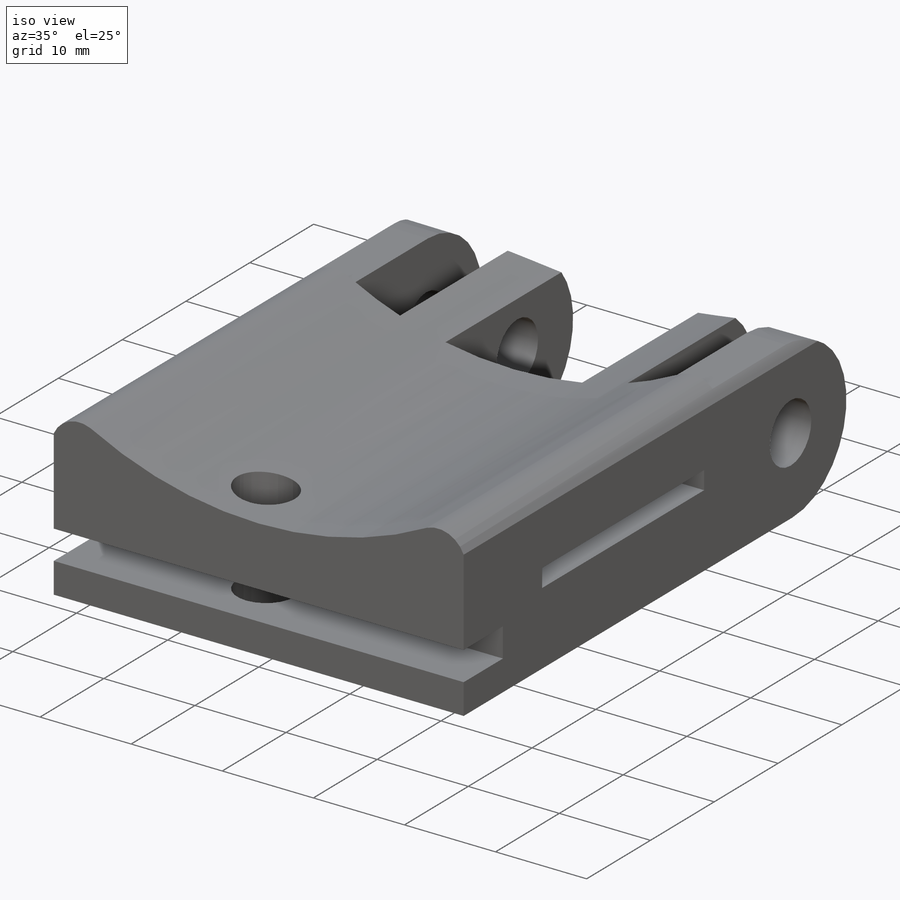
[diagram: iso view]
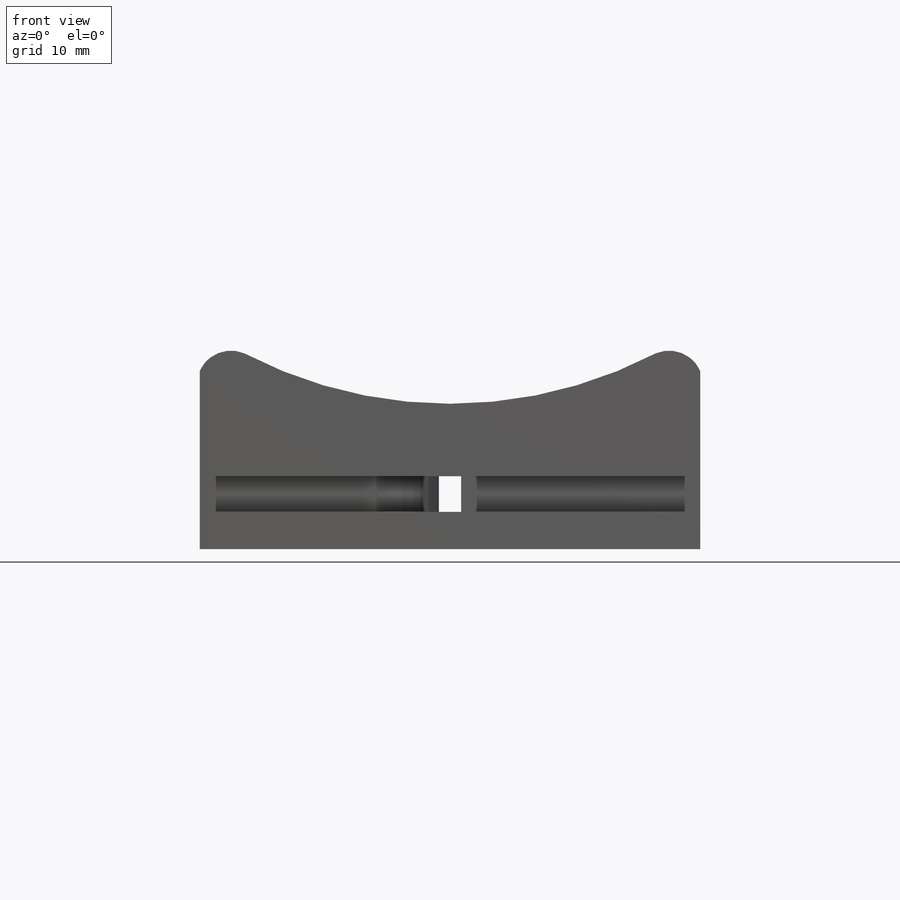
[diagram: front view]
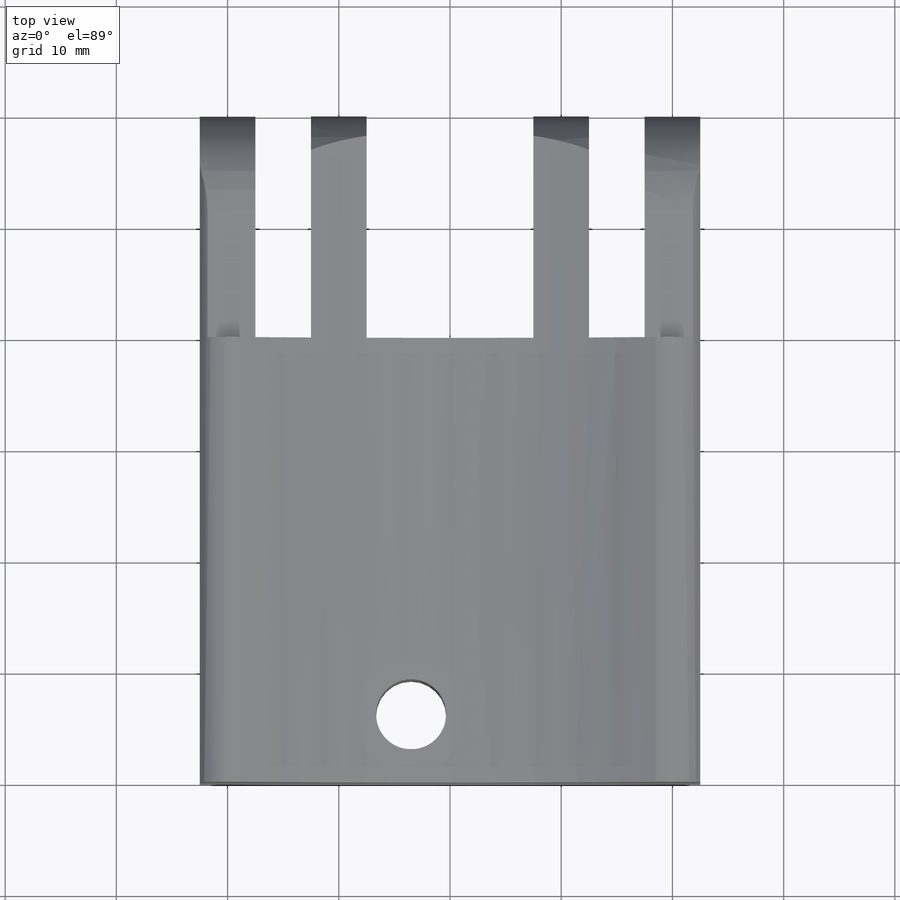
[diagram: top view]
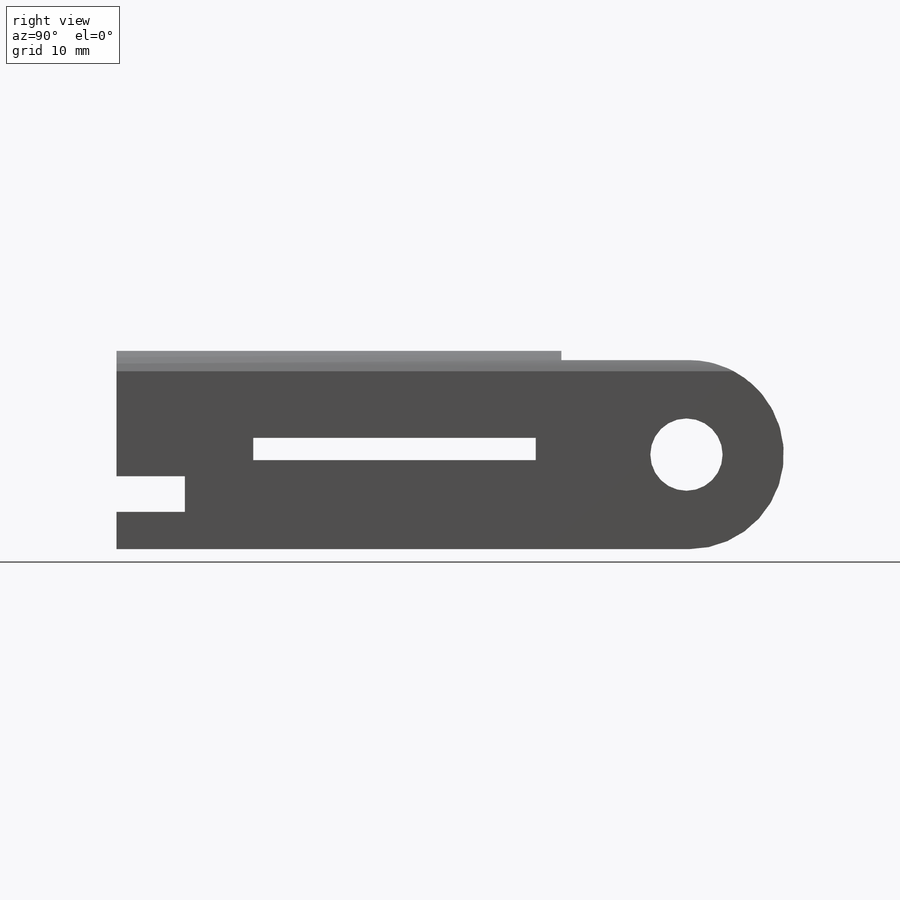
[diagram: right view]
SOLIDWORKS PART (.sldprt)
format: sldprt  version: not decoded by parser v0  size: 417,792 bytes
history: native  units: mm
features: sketch x8, cut_extrude x7, material x1, extrude x1 (+13 scaffold rows collapsed)
feature tree (30):
  scaffold x13  (default folders/planes/origin — collapsed)
  material  "Material <not specified>"
  sketch  "Sketch1"  dims[D1=40.0mm]
  extrude  "Boss-Extrude1"  Depth=20mm
  sketch  "Sketch2"  dims[D1=4.0mm]
  sketch  "Sketch6"  dims[D1=20.0mm]
  cut_extrude  "Cut-Extrude19"  Depth=45mm
  cut_extrude  "Cut-Extrude23"  Depth=444mm
  sketch  "Sketch10"  dims[D1=12.7mm]
  cut_extrude  "Cut-Extrude25"  Depth=45mm
  sketch  "Sketch12"  dims[D1=3.2mm]
  cut_extrude  "Cut-Extrude26"  Depth=444mm
  sketch  "Sketch16"  dims[D1=48.0mm]
  cut_extrude  "Cut-Extrude28"  Depth=45mm
  sketch  "Sketch18"  dims[D1=19.0mm]
  cut_extrude  "Cut-Extrude30"  Depth=20mm
  sketch  "Sketch24"  dims[D1=10.0mm]
  cut_extrude  "Cut-Extrude31"  Depth=6.15mm
decode coverage: 16 of 16 modeling features carry decoded parameters
note: suppression state not decoded; provenance and decode notes live in map.json
